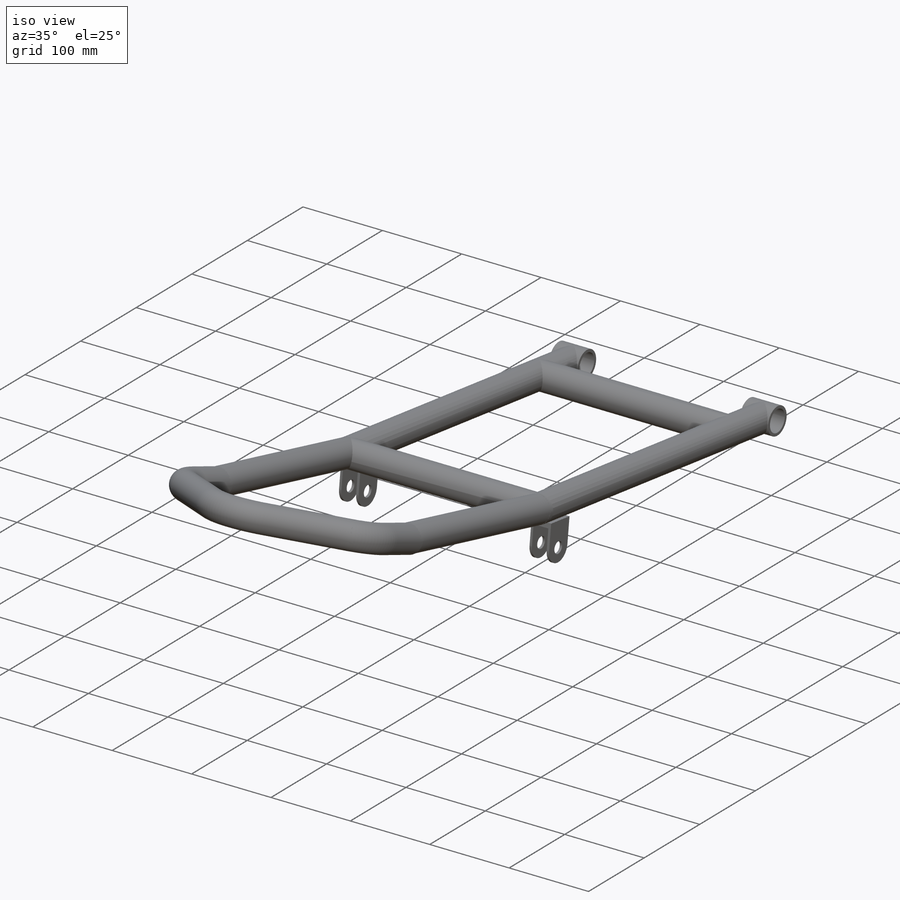
[diagram: iso view]
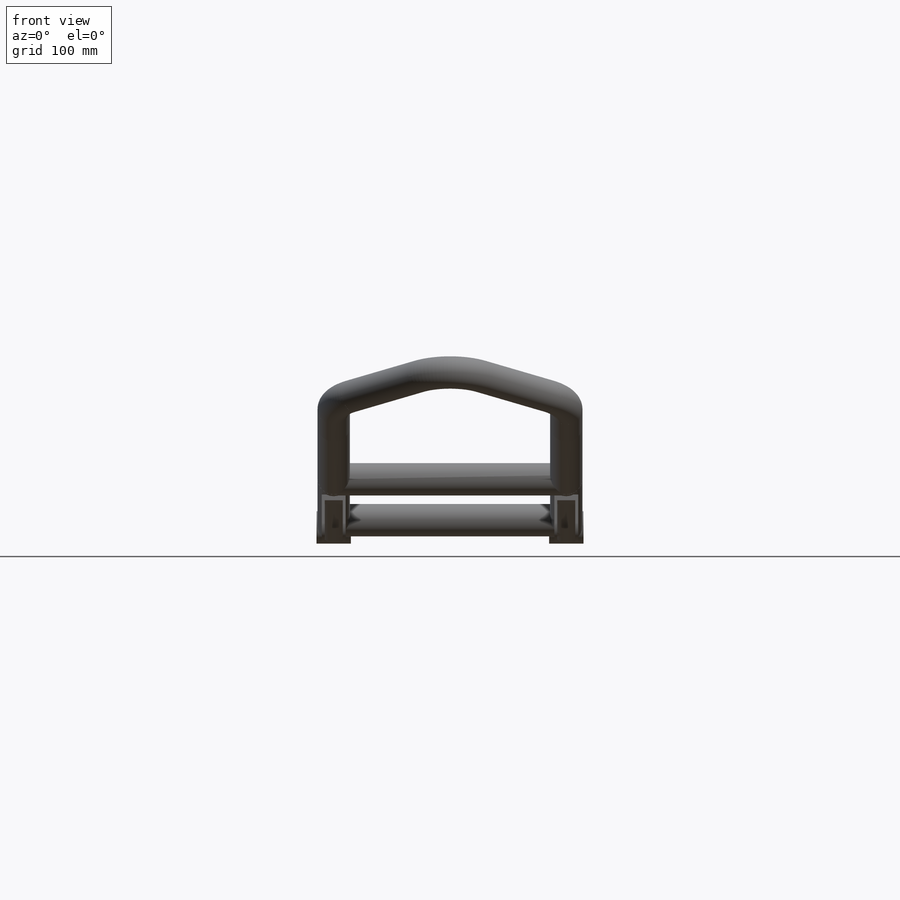
[diagram: front view]
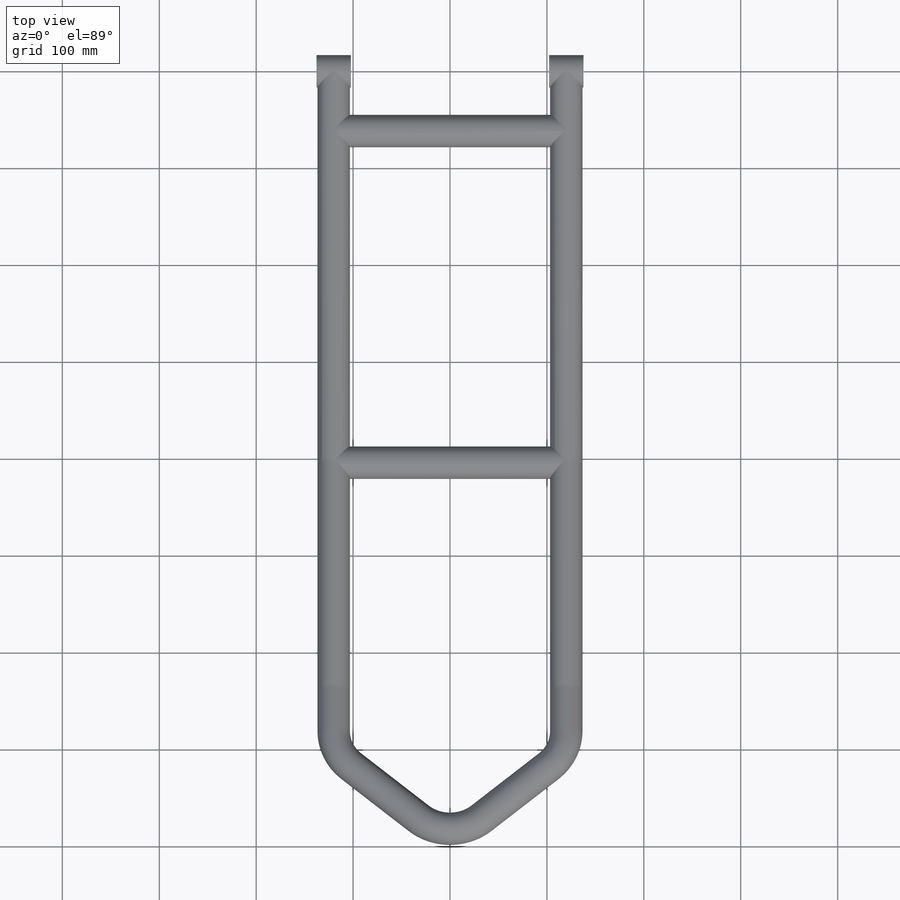
[diagram: top view]
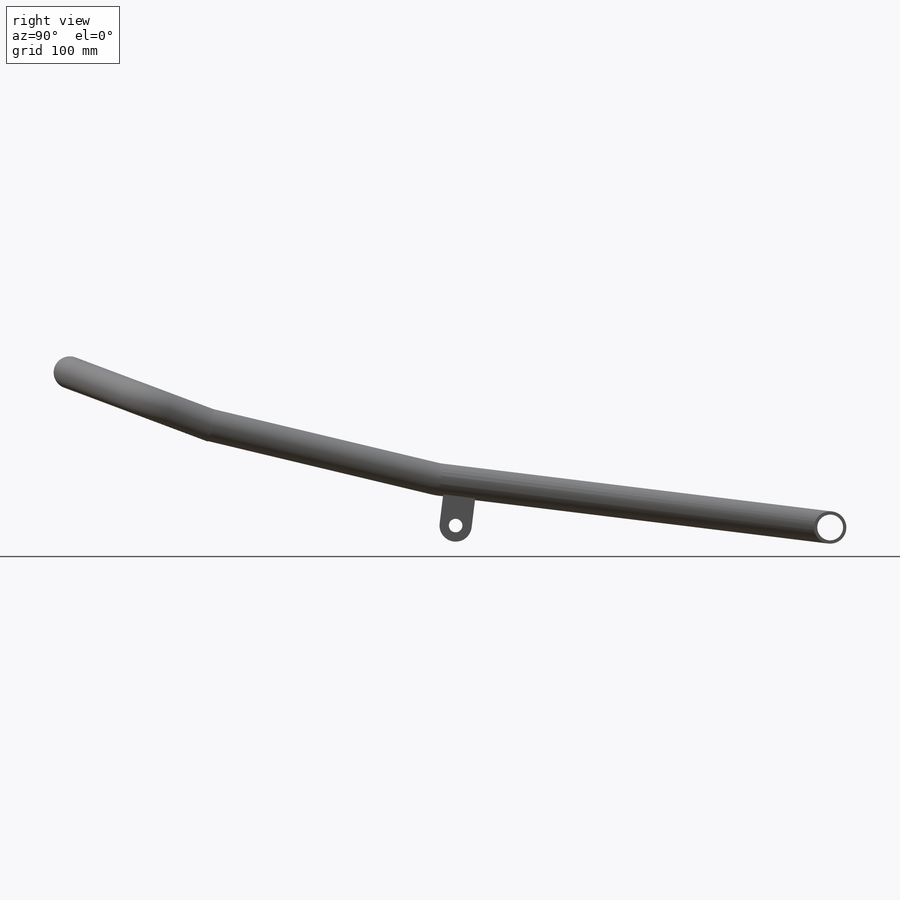
[diagram: right view]
SOLIDWORKS PART (.sldprt)
format: sldprt  version: not decoded by parser v0  size: 689,152 bytes
history: native  units: mm
features: sketch x19, plane x15, extrude x3, mirror x3, material x1, pattern_linear x1, cut_extrude x1 (+10 scaffold rows collapsed)
feature tree (53):
  scaffold x10  (default folders/planes/origin — collapsed)
  material  "Material <sin especificar>"
  plane  "Alzado"
  plane  "Planta"
  plane  "Vista lateral"
  sketch  "Croquis1"  dims[c1.D1=360.0mm c1.D2=~407.849492mm c2.D2=7.0deg]
  plane  "Plano1"  Offset=120mm
  sketch  "Croquis3"  dims[c1.D2=50.8mm c1.D1=250.0mm c2.D1=173.0deg c2.D3=7.0mm c3.D1=240.0mm c3.D4=405.0mm]
  sketch  "Croquis2"  dims[D1=33.4mm D2=~12.573869mm]
  sketch  "Croquis7"
  extrude  "Saliente-Extruir3"  Depth=35.4mm
  pattern_linear  "MatrizL2"  Count1=2 Count2=1 Spacing1=240mm Spacing2=10mm
  sketch  "Croquis9"  dims[D1=14.0mm]
  plane  "Plano4"  Offset=132.3mm
  sketch  "Croquis10"
  sketch  "Croquis11"  dims[D1=6.0mm]
  extrude  "Saliente-Extruir5"  Depth=24.6mm
  plane  "Plano5"
  sketch  "Croquis12"  dims[D1=240.0mm]
  plane  "Plano6"
  sketch  "Sketch11"  dims[In_dia=26.6446mm Out_dia=33.401mm D1=25.4mm]
  sketch  "Croquis14"  dims[c1.D1=~407.849492mm c2.D1=173.0deg c2.D2=471.6mm]
  plane  "Plano7"
  plane  "Plano8"  Offset=240mm
  sketch  "Croquis17"
  plane  "Plano9"
  sketch  "Croquis20"
  plane  "Plano11"
  sketch  "Sketch13"  dims[In_dia=26.6446mm Out_dia=33.401mm D1=25.4mm]
  sketch  "Croquis22"
  plane  "Plano12"
  sketch  "Croquis23"
  plane  "Plano13"
  sketch  "Croquis24"  dims[c1.D1=60.0mm c1.D2=60.0mm c1.D3=60.0mm c2.D1=50.8mm c2.D4=50.8mm c2.D6=60.0mm c2.D2=50.0mm c2.D3=50.0mm c2.D5=90.0mm c3.D6=50.0mm c4.D6=~129.745783deg c4.D7=~57.544418mm c5.D7=~100.508433deg]
  plane  "Plano16"
  sketch  "Sketch1"  dims[In_dia=26.6446mm Out_dia=33.401mm D1=25.4mm]
  plane  "Plano17"
  sketch  "Sketch16"  dims[In_dia=26.6446mm Out_dia=33.401mm D1=25.4mm]
  mirror  "Simetría1"
  sketch  "Croquis25"
  cut_extrude  "Cortar-Extruir1"  Depth=310mm
  extrude  "Saliente-Extruir6"  Depth=3mm
  mirror  "Simetría2"
  mirror  "Simetría3"
decode coverage: 17 of 27 modeling features carry decoded parameters
note: ~ marks probable driven/reference dimensions
note: suppression state not decoded; provenance and decode notes live in map.json
